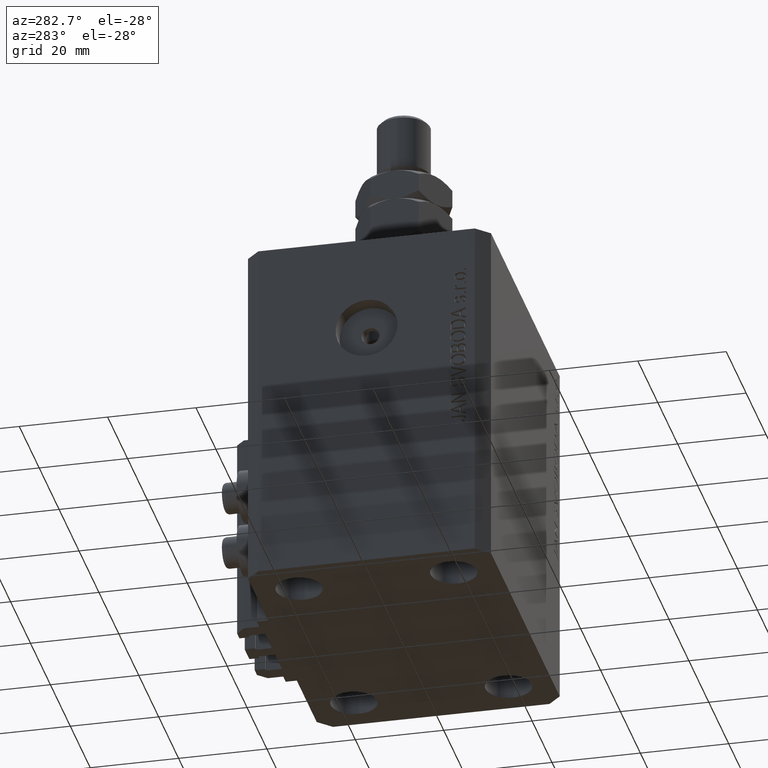
[diagram: clean part render]
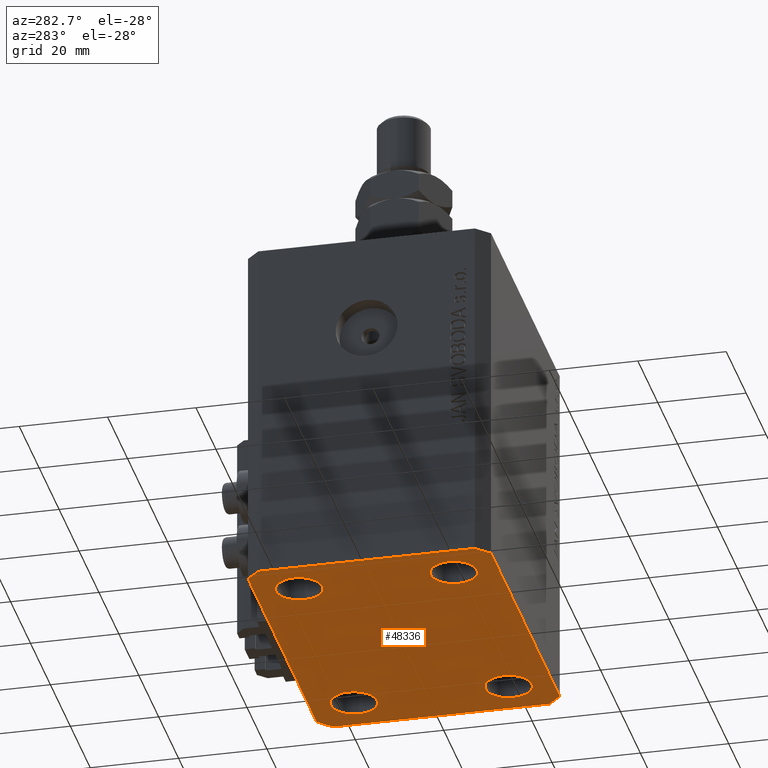
[diagram: same view with one face highlighted and labeled with its STEP entity id]
A machine part, auxiliary view. The second image highlights one B-rep face of the part: STEP entity #48336.
In plain terms, the highlighted planar face has unit normal (0, 0, 1).
Its self-contained STEP definition (entity closure, byte-faithful):
#174 = LINE ( 'NONE', #3879, #26691 ) ;
#449 = ORIENTED_EDGE ( 'NONE', *, *, #21982, .F. ) ;
#571 = VERTEX_POINT ( 'NONE', #14354 ) ;
#584 = CARTESIAN_POINT ( 'NONE',  ( 27.49999999999999289, -17.50000000000000000, -80.00000000000000000 ) ) ;
#870 = VERTEX_POINT ( 'NONE', #35886 ) ;
#1331 = DIRECTION ( 'NONE',  ( 1.000000000000000000, 0.000000000000000000, 0.000000000000000000 ) ) ;
#1764 = VECTOR ( 'NONE', #6521, 1000.000000000000000 ) ;
#1787 = VERTEX_POINT ( 'NONE', #23639 ) ;
#1876 = DIRECTION ( 'NONE',  ( 1.000000000000000000, 0.000000000000000000, 0.000000000000000000 ) ) ;
#2175 = CARTESIAN_POINT ( 'NONE',  ( 27.49999999999999289, -17.50000000000000000, -80.00000000000000000 ) ) ;
#2364 = EDGE_LOOP ( 'NONE', ( #27683, #23694, #34472, #21990, #39599, #28136, #19994, #36885 ) ) ;
#2654 = CARTESIAN_POINT ( 'NONE',  ( -27.49999999999999289, -17.50000000000000000, -80.00000000000000000 ) ) ;
#2709 = VERTEX_POINT ( 'NONE', #25282 ) ;
#3879 = CARTESIAN_POINT ( 'NONE',  ( -37.49999999999999289, 24.50000000000000000, -80.00000000000000000 ) ) ;
#4262 = EDGE_CURVE ( 'NONE', #22614, #15919, #18079, .T. ) ;
#4264 = CARTESIAN_POINT ( 'NONE',  ( -37.49999999999999289, -24.50000000000000000, -80.00000000000000000 ) ) ;
#4328 = VERTEX_POINT ( 'NONE', #24634 ) ;
#5231 = DIRECTION ( 'NONE',  ( 0.7071067811865474617, 0.7071067811865474617, 0.000000000000000000 ) ) ;
#5402 = VECTOR ( 'NONE', #44041, 1000.000000000000000 ) ;
#5959 = VECTOR ( 'NONE', #45654, 1000.000000000000000 ) ;
#6217 = CIRCLE ( 'NONE', #27455, 5.250000000000000888 ) ;
#6521 = DIRECTION ( 'NONE',  ( 1.000000000000000000, 0.000000000000000000, 0.000000000000000000 ) ) ;
#6730 = FACE_BOUND ( 'NONE', #9436, .T. ) ;
#6849 = EDGE_CURVE ( 'NONE', #2709, #571, #43921, .T. ) ;
#7436 = ORIENTED_EDGE ( 'NONE', *, *, #28585, .F. ) ;
#7855 = EDGE_CURVE ( 'NONE', #15919, #22614, #48520, .T. ) ;
#7890 = AXIS2_PLACEMENT_3D ( 'NONE', #31663, #42082, #46043 ) ;
#8259 = DIRECTION ( 'NONE',  ( -0.000000000000000000, -0.000000000000000000, -1.000000000000000000 ) ) ;
#8481 = ORIENTED_EDGE ( 'NONE', *, *, #11669, .F. ) ;
#8960 = EDGE_LOOP ( 'NONE', ( #19696, #12211 ) ) ;
#9009 = EDGE_CURVE ( 'NONE', #33828, #46787, #41855, .T. ) ;
#9436 = EDGE_LOOP ( 'NONE', ( #449, #38861 ) ) ;
#9914 = CIRCLE ( 'NONE', #37473, 5.250000000000000888 ) ;
#9921 = DIRECTION ( 'NONE',  ( -1.000000000000000000, 0.000000000000000000, 0.000000000000000000 ) ) ;
#10505 = ORIENTED_EDGE ( 'NONE', *, *, #41537, .F. ) ;
#10940 = EDGE_CURVE ( 'NONE', #40002, #4328, #30326, .T. ) ;
#11288 = DIRECTION ( 'NONE',  ( 0.000000000000000000, -1.000000000000000000, 0.000000000000000000 ) ) ;
#11428 = CARTESIAN_POINT ( 'NONE',  ( 32.75000000000000000, 17.49999999999999289, -80.00000000000000000 ) ) ;
#11669 = EDGE_CURVE ( 'NONE', #11844, #25316, #9914, .T. ) ;
#11814 = CIRCLE ( 'NONE', #7890, 5.250000000000000888 ) ;
#11844 = VERTEX_POINT ( 'NONE', #35248 ) ;
#12211 = ORIENTED_EDGE ( 'NONE', *, *, #4262, .F. ) ;
#12774 = AXIS2_PLACEMENT_3D ( 'NONE', #584, #8259, #38332 ) ;
#12992 = CARTESIAN_POINT ( 'NONE',  ( 27.50000000000000000, 17.49999999999999289, -80.00000000000000000 ) ) ;
#14354 = CARTESIAN_POINT ( 'NONE',  ( -37.49999999999999289, 24.50000000000000000, -80.00000000000000000 ) ) ;
#15312 = DIRECTION ( 'NONE',  ( -0.000000000000000000, -0.000000000000000000, -1.000000000000000000 ) ) ;
#15331 = AXIS2_PLACEMENT_3D ( 'NONE', #2175, #36218, #47599 ) ;
#15461 = CARTESIAN_POINT ( 'NONE',  ( 37.50000000000051870, 24.49999999999995381, -80.00000000000000000 ) ) ;
#15890 = AXIS2_PLACEMENT_3D ( 'NONE', #25942, #40994, #22243 ) ;
#15919 = VERTEX_POINT ( 'NONE', #25454 ) ;
#16651 = CARTESIAN_POINT ( 'NONE',  ( 34.50000000000056843, 27.50000000000000000, -80.00000000000000000 ) ) ;
#17397 = LINE ( 'NONE', #21576, #5402 ) ;
#17916 = EDGE_CURVE ( 'NONE', #870, #47299, #30094, .T. ) ;
#18079 = CIRCLE ( 'NONE', #22790, 5.250000000000000888 ) ;
#18512 = CARTESIAN_POINT ( 'NONE',  ( -27.50000000000000000, 17.49999999999999645, -80.00000000000000000 ) ) ;
#19696 = ORIENTED_EDGE ( 'NONE', *, *, #7855, .F. ) ;
#19994 = ORIENTED_EDGE ( 'NONE', *, *, #43419, .F. ) ;
#20086 = DIRECTION ( 'NONE',  ( -0.000000000000000000, -0.000000000000000000, -1.000000000000000000 ) ) ;
#21053 = CARTESIAN_POINT ( 'NONE',  ( -34.49999999999998579, -27.49999999999999645, -80.00000000000000000 ) ) ;
#21305 = LINE ( 'NONE', #21053, #1764 ) ;
#21447 = CARTESIAN_POINT ( 'NONE',  ( -34.49999999999999289, 27.50000000000000000, -80.00000000000000000 ) ) ;
#21499 = VECTOR ( 'NONE', #5231, 1000.000000000000114 ) ;
#21576 = CARTESIAN_POINT ( 'NONE',  ( 37.49999999999999289, -24.50000000000000000, -80.00000000000000000 ) ) ;
#21640 = DIRECTION ( 'NONE',  ( 1.000000000000000000, 0.000000000000000000, 0.000000000000000000 ) ) ;
#21982 = EDGE_CURVE ( 'NONE', #47299, #870, #36581, .T. ) ;
#21990 = ORIENTED_EDGE ( 'NONE', *, *, #25426, .F. ) ;
#22243 = DIRECTION ( 'NONE',  ( 1.000000000000000000, 0.000000000000000000, -0.000000000000000000 ) ) ;
#22614 = VERTEX_POINT ( 'NONE', #26155 ) ;
#22790 = AXIS2_PLACEMENT_3D ( 'NONE', #33807, #34520, #45185 ) ;
#23639 = CARTESIAN_POINT ( 'NONE',  ( 37.49999999999999289, -24.50000000000000000, -80.00000000000000000 ) ) ;
#23694 = ORIENTED_EDGE ( 'NONE', *, *, #9009, .F. ) ;
#24634 = CARTESIAN_POINT ( 'NONE',  ( -34.49999999999998579, -27.49999999999999645, -80.00000000000000000 ) ) ;
#24744 = CARTESIAN_POINT ( 'NONE',  ( -27.50000000000000000, 17.49999999999999645, -80.00000000000000000 ) ) ;
#25282 = CARTESIAN_POINT ( 'NONE',  ( -34.49999999999999289, 27.50000000000000000, -80.00000000000000000 ) ) ;
#25316 = VERTEX_POINT ( 'NONE', #44984 ) ;
#25426 = EDGE_CURVE ( 'NONE', #26051, #1787, #39017, .T. ) ;
#25454 = CARTESIAN_POINT ( 'NONE',  ( -22.24999999999999289, -17.50000000000000000, -80.00000000000000000 ) ) ;
#25610 = VECTOR ( 'NONE', #47381, 1000.000000000000000 ) ;
#25942 = CARTESIAN_POINT ( 'NONE',  ( 0.000000000000000000, 0.000000000000000000, -80.00000000000000000 ) ) ;
#26051 = VERTEX_POINT ( 'NONE', #44076 ) ;
#26155 = CARTESIAN_POINT ( 'NONE',  ( -32.74999999999999289, -17.50000000000000000, -80.00000000000000000 ) ) ;
#26691 = VECTOR ( 'NONE', #11288, 1000.000000000000000 ) ;
#26911 = CARTESIAN_POINT ( 'NONE',  ( 37.50000000000051870, 24.49999999999995381, -80.00000000000000000 ) ) ;
#27455 = AXIS2_PLACEMENT_3D ( 'NONE', #24744, #20086, #1331 ) ;
#27683 = ORIENTED_EDGE ( 'NONE', *, *, #46162, .F. ) ;
#28136 = ORIENTED_EDGE ( 'NONE', *, *, #10940, .F. ) ;
#28585 = EDGE_CURVE ( 'NONE', #47525, #42625, #46732, .T. ) ;
#28633 = CARTESIAN_POINT ( 'NONE',  ( 34.50000000000056843, 27.50000000000000000, -80.00000000000000000 ) ) ;
#29119 = EDGE_CURVE ( 'NONE', #4328, #26051, #21305, .T. ) ;
#29385 = FACE_OUTER_BOUND ( 'NONE', #2364, .T. ) ;
#29626 = PLANE ( 'NONE',  #15890 ) ;
#30094 = CIRCLE ( 'NONE', #12774, 5.250000000000000888 ) ;
#30149 = AXIS2_PLACEMENT_3D ( 'NONE', #12992, #35676, #1876 ) ;
#30326 = LINE ( 'NONE', #46144, #5959 ) ;
#30472 = EDGE_LOOP ( 'NONE', ( #8481, #10505 ) ) ;
#31663 = CARTESIAN_POINT ( 'NONE',  ( 27.50000000000000000, 17.49999999999999289, -80.00000000000000000 ) ) ;
#32739 = EDGE_CURVE ( 'NONE', #1787, #33828, #17397, .T. ) ;
#33310 = DIRECTION ( 'NONE',  ( 1.000000000000000000, 0.000000000000000000, 0.000000000000000000 ) ) ;
#33340 = FACE_BOUND ( 'NONE', #42432, .T. ) ;
#33807 = CARTESIAN_POINT ( 'NONE',  ( -27.49999999999999289, -17.50000000000000000, -80.00000000000000000 ) ) ;
#33828 = VERTEX_POINT ( 'NONE', #26911 ) ;
#34238 = VECTOR ( 'NONE', #37172, 1000.000000000000114 ) ;
#34472 = ORIENTED_EDGE ( 'NONE', *, *, #32739, .F. ) ;
#34520 = DIRECTION ( 'NONE',  ( -0.000000000000000000, -0.000000000000000000, -1.000000000000000000 ) ) ;
#34817 = CARTESIAN_POINT ( 'NONE',  ( 34.49999999999999289, -27.49999999999999645, -80.00000000000000000 ) ) ;
#35248 = CARTESIAN_POINT ( 'NONE',  ( -22.25000000000000000, 17.49999999999999645, -80.00000000000000000 ) ) ;
#35676 = DIRECTION ( 'NONE',  ( -0.000000000000000000, -0.000000000000000000, -1.000000000000000000 ) ) ;
#35886 = CARTESIAN_POINT ( 'NONE',  ( 22.24999999999999289, -17.50000000000000000, -80.00000000000000000 ) ) ;
#36218 = DIRECTION ( 'NONE',  ( -0.000000000000000000, -0.000000000000000000, -1.000000000000000000 ) ) ;
#36581 = CIRCLE ( 'NONE', #15331, 5.250000000000000888 ) ;
#36803 = FACE_BOUND ( 'NONE', #30472, .T. ) ;
#36885 = ORIENTED_EDGE ( 'NONE', *, *, #6849, .F. ) ;
#37172 = DIRECTION ( 'NONE',  ( -0.7071067811865364705, 0.7071067811865584529, 0.000000000000000000 ) ) ;
#37473 = AXIS2_PLACEMENT_3D ( 'NONE', #18512, #15312, #33310 ) ;
#37959 = CARTESIAN_POINT ( 'NONE',  ( 32.74999999999999289, -17.50000000000000000, -80.00000000000000000 ) ) ;
#38332 = DIRECTION ( 'NONE',  ( 1.000000000000000000, 0.000000000000000000, 0.000000000000000000 ) ) ;
#38861 = ORIENTED_EDGE ( 'NONE', *, *, #17916, .F. ) ;
#38925 = ORIENTED_EDGE ( 'NONE', *, *, #40550, .F. ) ;
#39017 = LINE ( 'NONE', #34817, #21499 ) ;
#39599 = ORIENTED_EDGE ( 'NONE', *, *, #29119, .F. ) ;
#40002 = VERTEX_POINT ( 'NONE', #4264 ) ;
#40550 = EDGE_CURVE ( 'NONE', #42625, #47525, #11814, .T. ) ;
#40746 = FACE_BOUND ( 'NONE', #8960, .T. ) ;
#40994 = DIRECTION ( 'NONE',  ( 0.000000000000000000, 0.000000000000000000, 1.000000000000000000 ) ) ;
#41537 = EDGE_CURVE ( 'NONE', #25316, #11844, #6217, .T. ) ;
#41855 = LINE ( 'NONE', #15461, #34238 ) ;
#42082 = DIRECTION ( 'NONE',  ( -0.000000000000000000, -0.000000000000000000, -1.000000000000000000 ) ) ;
#42209 = AXIS2_PLACEMENT_3D ( 'NONE', #2654, #44110, #21640 ) ;
#42432 = EDGE_LOOP ( 'NONE', ( #38925, #7436 ) ) ;
#42625 = VERTEX_POINT ( 'NONE', #11428 ) ;
#43419 = EDGE_CURVE ( 'NONE', #571, #40002, #174, .T. ) ;
#43921 = LINE ( 'NONE', #21447, #25610 ) ;
#44041 = DIRECTION ( 'NONE',  ( 1.076236605503979380E-14, 1.000000000000000000, 0.000000000000000000 ) ) ;
#44076 = CARTESIAN_POINT ( 'NONE',  ( 34.49999999999999289, -27.49999999999999645, -80.00000000000000000 ) ) ;
#44110 = DIRECTION ( 'NONE',  ( -0.000000000000000000, -0.000000000000000000, -1.000000000000000000 ) ) ;
#44348 = CARTESIAN_POINT ( 'NONE',  ( 22.25000000000000000, 17.49999999999999289, -80.00000000000000000 ) ) ;
#44984 = CARTESIAN_POINT ( 'NONE',  ( -32.75000000000000000, 17.49999999999999645, -80.00000000000000000 ) ) ;
#44999 = VECTOR ( 'NONE', #9921, 1000.000000000000000 ) ;
#45185 = DIRECTION ( 'NONE',  ( 1.000000000000000000, 0.000000000000000000, 0.000000000000000000 ) ) ;
#45654 = DIRECTION ( 'NONE',  ( 0.7071067811865483499, -0.7071067811865466846, 0.000000000000000000 ) ) ;
#46043 = DIRECTION ( 'NONE',  ( 1.000000000000000000, 0.000000000000000000, 0.000000000000000000 ) ) ;
#46144 = CARTESIAN_POINT ( 'NONE',  ( -37.49999999999999289, -24.50000000000000000, -80.00000000000000000 ) ) ;
#46162 = EDGE_CURVE ( 'NONE', #46787, #2709, #47428, .T. ) ;
#46732 = CIRCLE ( 'NONE', #30149, 5.250000000000000888 ) ;
#46787 = VERTEX_POINT ( 'NONE', #16651 ) ;
#47299 = VERTEX_POINT ( 'NONE', #37959 ) ;
#47381 = DIRECTION ( 'NONE',  ( -0.7071067811865471286, -0.7071067811865479058, 0.000000000000000000 ) ) ;
#47428 = LINE ( 'NONE', #28633, #44999 ) ;
#47525 = VERTEX_POINT ( 'NONE', #44348 ) ;
#47599 = DIRECTION ( 'NONE',  ( 1.000000000000000000, 0.000000000000000000, 0.000000000000000000 ) ) ;
#48336 = ADVANCED_FACE ( 'NONE', ( #40746, #6730, #33340, #36803, #29385 ), #29626, .F. ) ;
#48520 = CIRCLE ( 'NONE', #42209, 5.250000000000000888 ) ;